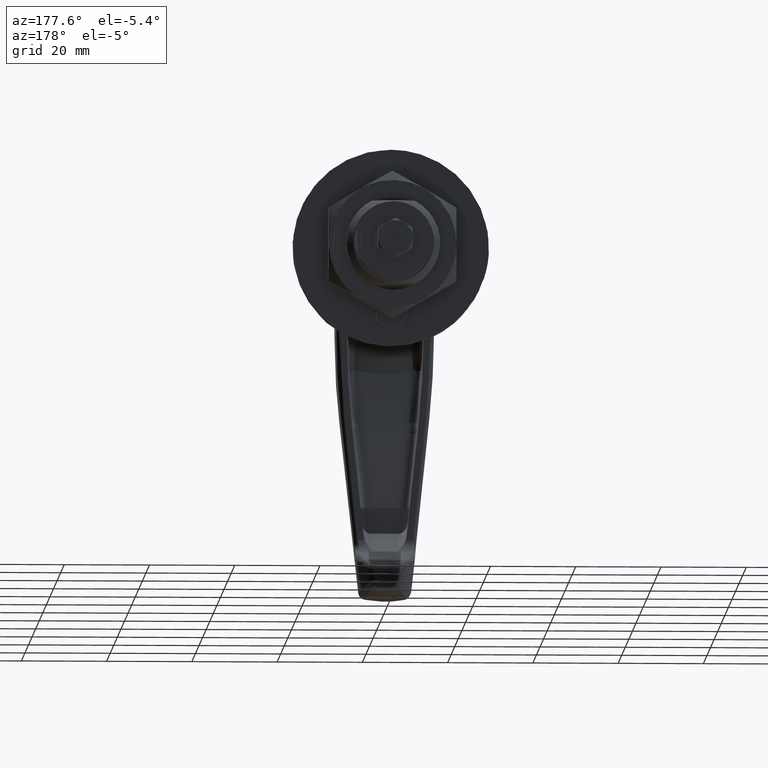
[diagram: clean part render]
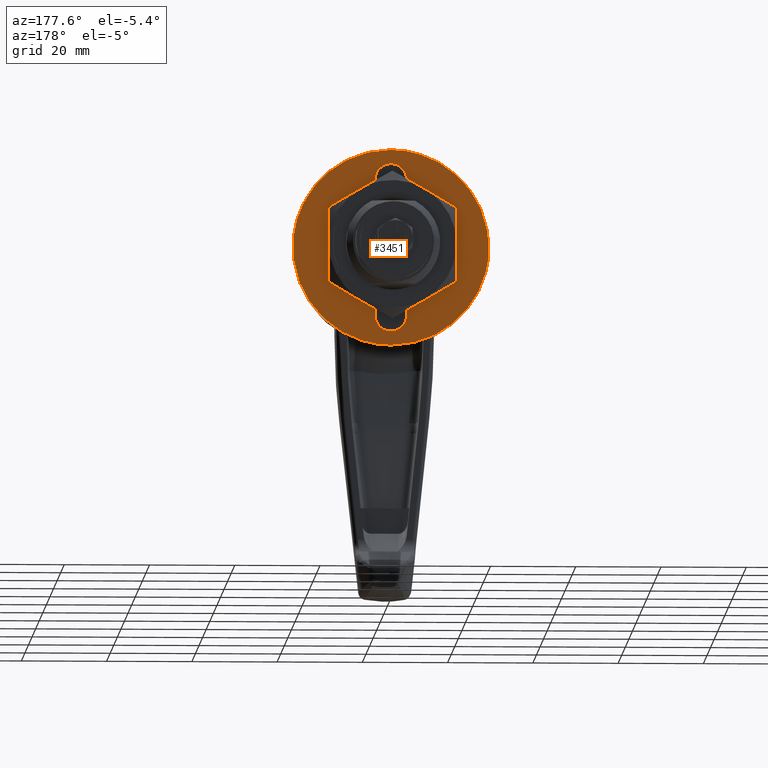
[diagram: same view with one face highlighted and labeled with its STEP entity id]
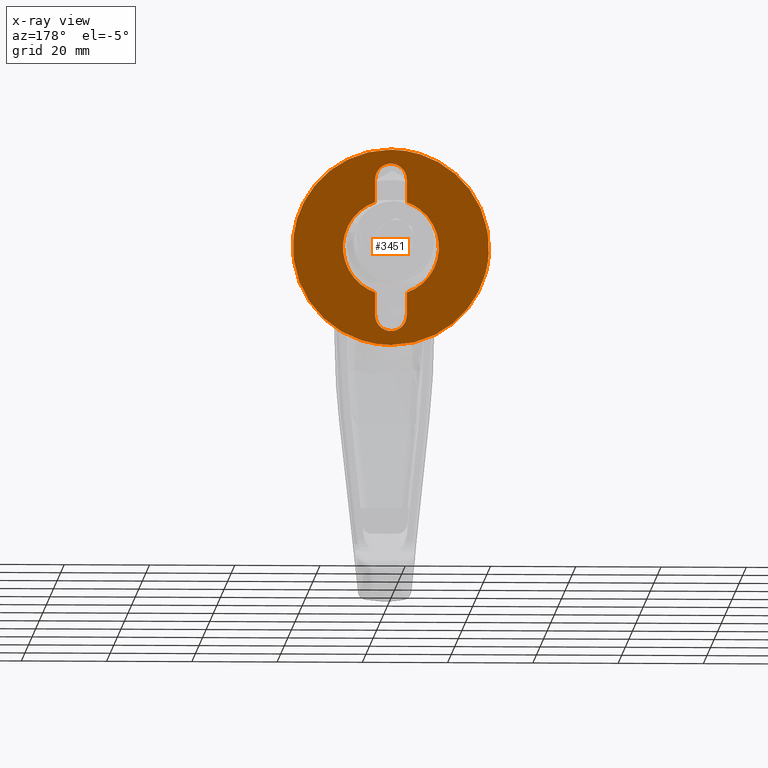
[diagram: x-ray of the same camera — body ghosted, the highlighted face saturated]
A machine part, auxiliary view. The second image highlights one B-rep face of the part: STEP entity #3451.
The next image is the same camera in x-ray: the body ghosted, the highlighted face saturated — about 0% of this face is hidden behind the body in this view.
In plain terms, the highlighted face is a freeform B-spline surface patch.
Its self-contained STEP definition (entity closure, byte-faithful):
#3178=CARTESIAN_POINT('',(-3.549285E-018,-22.839218676945340,2.714787397271931));
#3179=VERTEX_POINT('',#3178);
#3180=CARTESIAN_POINT('',(0.0,0.000000429399194,-23.0));
#3181=VERTEX_POINT('',#3180);
#3182=CARTESIAN_POINT('',(-3.549285E-018,-22.839218676945347,2.714787397271931));
#3183=CARTESIAN_POINT('',(0.0,-22.999999570600806,1.362154752162177));
#3184=CARTESIAN_POINT('',(0.0,-22.999999570600810,2.629225E-023));
#3185=CARTESIAN_POINT('',(0.0,-22.999999570600803,-22.999999999999993));
#3186=CARTESIAN_POINT('',(0.0,0.000000429399194,-23.0));
#3194=(BOUNDED_CURVE()B_SPLINE_CURVE(2,(#3182,#3183,#3184,#3185,#3186),.UNSPECIFIED.,.F.,.U.)B_SPLINE_CURVE_WITH_KNOTS((3,2,3),(0.229562473513180,0.250000000000000,0.500000000000000),.UNSPECIFIED.)CURVE()GEOMETRIC_REPRESENTATION_ITEM()RATIONAL_B_SPLINE_CURVE((0.956026754183056,0.976055948330761,1.0,0.707106781186548,1.0))REPRESENTATION_ITEM(''));
#3195=EDGE_CURVE('',#3179,#3181,#3194,.T.);
#3236=CARTESIAN_POINT('',(-5.204170E-018,22.957100793088031,-1.404116409532238));
#3237=VERTEX_POINT('',#3236);
#3243=CARTESIAN_POINT('',(0.0,0.000000429399194,-23.0));
#3244=CARTESIAN_POINT('',(0.0,21.636239967794861,-22.999999999999996));
#3245=CARTESIAN_POINT('',(-5.204170E-018,22.957100793088028,-1.404116409532238));
#3253=(BOUNDED_CURVE()B_SPLINE_CURVE(2,(#3243,#3244,#3245),.UNSPECIFIED.,.F.,.U.)B_SPLINE_CURVE_WITH_KNOTS((3,3),(0.500000000000000,0.739332962238503),.UNSPECIFIED.)CURVE()GEOMETRIC_REPRESENTATION_ITEM()RATIONAL_B_SPLINE_CURVE((1.0,0.719603993287225,0.976072041665775))REPRESENTATION_ITEM(''));
#3254=EDGE_CURVE('',#3181,#3237,#3253,.T.);
#3277=CARTESIAN_POINT('',(0.0,0.000000429399194,23.0));
#3278=VERTEX_POINT('',#3277);
#3279=CARTESIAN_POINT('',(0.0,0.000000429399194,23.0));
#3280=CARTESIAN_POINT('',(0.0,-20.428013667182331,23.000000000000004));
#3281=CARTESIAN_POINT('',(-3.549285E-018,-22.839218676945340,2.714787397271932));
#3289=(BOUNDED_CURVE()B_SPLINE_CURVE(2,(#3279,#3280,#3281),.UNSPECIFIED.,.F.,.U.)B_SPLINE_CURVE_WITH_KNOTS((3,3),(0.0,0.229562473513180),.UNSPECIFIED.)CURVE()GEOMETRIC_REPRESENTATION_ITEM()RATIONAL_B_SPLINE_CURVE((1.0,0.731050832855787,0.956026754183056))REPRESENTATION_ITEM(''));
#3290=EDGE_CURVE('',#3278,#3179,#3289,.T.);
#3292=CARTESIAN_POINT('',(-5.204170E-018,22.957100793088028,-1.404116409532237));
#3293=CARTESIAN_POINT('',(0.0,23.000000429399197,-0.702713556098719));
#3294=CARTESIAN_POINT('',(0.0,23.000000429399190,2.629225E-023));
#3295=CARTESIAN_POINT('',(0.0,23.000000429399197,22.999999999999993));
#3296=CARTESIAN_POINT('',(0.0,0.000000429399194,23.0));
#3304=(BOUNDED_CURVE()B_SPLINE_CURVE(2,(#3292,#3293,#3294,#3295,#3296),.UNSPECIFIED.,.F.,.U.)B_SPLINE_CURVE_WITH_KNOTS((3,2,3),(0.739332962238503,0.750000000000000,1.0),.UNSPECIFIED.)CURVE()GEOMETRIC_REPRESENTATION_ITEM()RATIONAL_B_SPLINE_CURVE((0.976072041665775,0.987502787899322,1.0,0.707106781186548,1.0))REPRESENTATION_ITEM(''));
#3305=EDGE_CURVE('',#3237,#3278,#3304,.T.);
#3342=CARTESIAN_POINT('',(0.0,-25.297281591287302,25.297699910843079));
#3343=CARTESIAN_POINT('',(0.0,25.297140561228801,25.297699910843079));
#3344=CARTESIAN_POINT('',(0.0,-25.297281591287302,-25.297701144659221));
#3345=CARTESIAN_POINT('',(0.0,25.297140561228801,-25.297701144659221));
#3346=B_SPLINE_SURFACE_WITH_KNOTS('',1,1,((#3342,#3344),(#3343,#3345)),.UNSPECIFIED.,.F.,.F.,.U.,(2,2),(2,2),(0.0,50.594422152516103),(0.0,50.595401055502293),.UNSPECIFIED.);
#3347=ORIENTED_EDGE('',*,*,#3290,.T.);
#3348=ORIENTED_EDGE('',*,*,#3195,.T.);
#3349=ORIENTED_EDGE('',*,*,#3254,.T.);
#3350=ORIENTED_EDGE('',*,*,#3305,.T.);
#3351=EDGE_LOOP('',(#3347,#3348,#3349,#3350));
#3352=FACE_OUTER_BOUND('',#3351,.T.);
#3353=CARTESIAN_POINT('',(0.0,-3.700000000000000,10.624146776671321));
#3354=VERTEX_POINT('',#3353);
#3355=CARTESIAN_POINT('',(0.0,-3.700000000000000,-10.624146776671321));
#3356=VERTEX_POINT('',#3355);
#3357=CARTESIAN_POINT('',(0.0,-3.700000000000006,10.624146776671330));
#3358=CARTESIAN_POINT('',(0.0,-11.249999942056769,7.994759238926758));
#3359=CARTESIAN_POINT('',(0.0,-11.250000000000000,-0.000000166377668));
#3360=CARTESIAN_POINT('',(0.0,-11.250000057943227,-7.994759571682097));
#3361=CARTESIAN_POINT('',(0.0,-3.700000000000000,-10.624146776671321));
#3369=(BOUNDED_CURVE()B_SPLINE_CURVE(2,(#3357,#3358,#3359,#3360,#3361),.UNSPECIFIED.,.F.,.U.)B_SPLINE_CURVE_WITH_KNOTS((3,2,3),(0.0,0.500000000000000,1.0),.UNSPECIFIED.)CURVE()GEOMETRIC_REPRESENTATION_ITEM()RATIONAL_B_SPLINE_CURVE((1.0,0.815134619475012,1.0,0.815134619475012,1.0))REPRESENTATION_ITEM(''));
#3370=EDGE_CURVE('',#3354,#3356,#3369,.T.);
#3371=ORIENTED_EDGE('',*,*,#3370,.F.);
#3372=CARTESIAN_POINT('',(0.0,-3.700000000000000,16.0));
#3373=VERTEX_POINT('',#3372);
#3374=CARTESIAN_POINT('',(0.0,-3.700000000000000,16.0));
#3375=CARTESIAN_POINT('',(0.0,-3.700000000000000,10.624146776671321));
#3376=QUASI_UNIFORM_CURVE('',1,(#3374,#3375),.UNSPECIFIED.,.F.,.U.);
#3377=EDGE_CURVE('',#3373,#3354,#3376,.T.);
#3378=ORIENTED_EDGE('',*,*,#3377,.F.);
#3379=CARTESIAN_POINT('',(0.0,3.700000000000000,16.0));
#3380=VERTEX_POINT('',#3379);
#3381=CARTESIAN_POINT('',(0.0,3.699999999999999,16.0));
#3382=CARTESIAN_POINT('',(0.0,3.699999999999999,19.700000000000006));
#3383=CARTESIAN_POINT('',(0.0,-7.905216E-016,19.699999999999999));
#3384=CARTESIAN_POINT('',(0.0,-3.700000000000001,19.700000000000006));
#3385=CARTESIAN_POINT('',(0.0,-3.700000000000001,16.0));
#3393=(BOUNDED_CURVE()B_SPLINE_CURVE(2,(#3381,#3382,#3383,#3384,#3385),.UNSPECIFIED.,.F.,.U.)B_SPLINE_CURVE_WITH_KNOTS((3,2,3),(0.0,0.500000000000000,1.0),.UNSPECIFIED.)CURVE()GEOMETRIC_REPRESENTATION_ITEM()RATIONAL_B_SPLINE_CURVE((1.0,0.707106781186548,1.0,0.707106781186548,1.0))REPRESENTATION_ITEM(''));
#3394=EDGE_CURVE('',#3380,#3373,#3393,.T.);
#3395=ORIENTED_EDGE('',*,*,#3394,.F.);
#3396=CARTESIAN_POINT('',(0.0,3.700000000000000,10.624146776671321));
#3397=VERTEX_POINT('',#3396);
#3398=CARTESIAN_POINT('',(0.0,3.700000000000000,10.624146776671321));
#3399=CARTESIAN_POINT('',(0.0,3.700000000000000,16.0));
#3400=QUASI_UNIFORM_CURVE('',1,(#3398,#3399),.UNSPECIFIED.,.F.,.U.);
#3401=EDGE_CURVE('',#3397,#3380,#3400,.T.);
#3402=ORIENTED_EDGE('',*,*,#3401,.F.);
#3403=CARTESIAN_POINT('',(0.0,3.700000000000000,-10.624146776671321));
#3404=VERTEX_POINT('',#3403);
#3405=CARTESIAN_POINT('',(0.0,3.700000000000000,-10.624146776671321));
#3406=CARTESIAN_POINT('',(0.0,11.250000057943224,-7.994759571682098));
#3407=CARTESIAN_POINT('',(0.0,11.250000000000000,-0.000000166377671));
#3408=CARTESIAN_POINT('',(0.0,11.249999942056773,7.994759238926755));
#3409=CARTESIAN_POINT('',(0.0,3.700000000000009,10.624146776671330));
#3417=(BOUNDED_CURVE()B_SPLINE_CURVE(2,(#3405,#3406,#3407,#3408,#3409),.UNSPECIFIED.,.F.,.U.)B_SPLINE_CURVE_WITH_KNOTS((3,2,3),(0.0,0.500000000000000,1.0),.UNSPECIFIED.)CURVE()GEOMETRIC_REPRESENTATION_ITEM()RATIONAL_B_SPLINE_CURVE((1.0,0.815134619475012,1.0,0.815134619475012,1.0))REPRESENTATION_ITEM(''));
#3418=EDGE_CURVE('',#3404,#3397,#3417,.T.);
#3419=ORIENTED_EDGE('',*,*,#3418,.F.);
#3420=CARTESIAN_POINT('',(0.0,3.700000000000000,-16.0));
#3421=VERTEX_POINT('',#3420);
#3422=CARTESIAN_POINT('',(0.0,3.700000000000000,-16.0));
#3423=CARTESIAN_POINT('',(0.0,3.700000000000000,-10.624146776671321));
#3424=QUASI_UNIFORM_CURVE('',1,(#3422,#3423),.UNSPECIFIED.,.F.,.U.);
#3425=EDGE_CURVE('',#3421,#3404,#3424,.T.);
#3426=ORIENTED_EDGE('',*,*,#3425,.F.);
#3427=CARTESIAN_POINT('',(0.0,-3.700000000000000,-16.0));
#3428=VERTEX_POINT('',#3427);
#3429=CARTESIAN_POINT('',(0.0,-3.699999999999999,-16.0));
#3430=CARTESIAN_POINT('',(0.0,-3.699999999999999,-19.700000000000006));
#3431=CARTESIAN_POINT('',(0.0,7.905216E-016,-19.699999999999999));
#3432=CARTESIAN_POINT('',(0.0,3.700000000000001,-19.700000000000006));
#3433=CARTESIAN_POINT('',(0.0,3.700000000000001,-16.0));
#3441=(BOUNDED_CURVE()B_SPLINE_CURVE(2,(#3429,#3430,#3431,#3432,#3433),.UNSPECIFIED.,.F.,.U.)B_SPLINE_CURVE_WITH_KNOTS((3,2,3),(0.0,0.500000000000000,1.0),.UNSPECIFIED.)CURVE()GEOMETRIC_REPRESENTATION_ITEM()RATIONAL_B_SPLINE_CURVE((1.0,0.707106781186548,1.0,0.707106781186548,1.0))REPRESENTATION_ITEM(''));
#3442=EDGE_CURVE('',#3428,#3421,#3441,.T.);
#3443=ORIENTED_EDGE('',*,*,#3442,.F.);
#3444=CARTESIAN_POINT('',(0.0,-3.700000000000000,-10.624146776671321));
#3445=CARTESIAN_POINT('',(0.0,-3.700000000000000,-16.0));
#3446=QUASI_UNIFORM_CURVE('',1,(#3444,#3445),.UNSPECIFIED.,.F.,.U.);
#3447=EDGE_CURVE('',#3356,#3428,#3446,.T.);
#3448=ORIENTED_EDGE('',*,*,#3447,.F.);
#3449=EDGE_LOOP('',(#3371,#3378,#3395,#3402,#3419,#3426,#3443,#3448));
#3450=FACE_BOUND('',#3449,.T.);
#3451=ADVANCED_FACE('',(#3352,#3450),#3346,.F.);